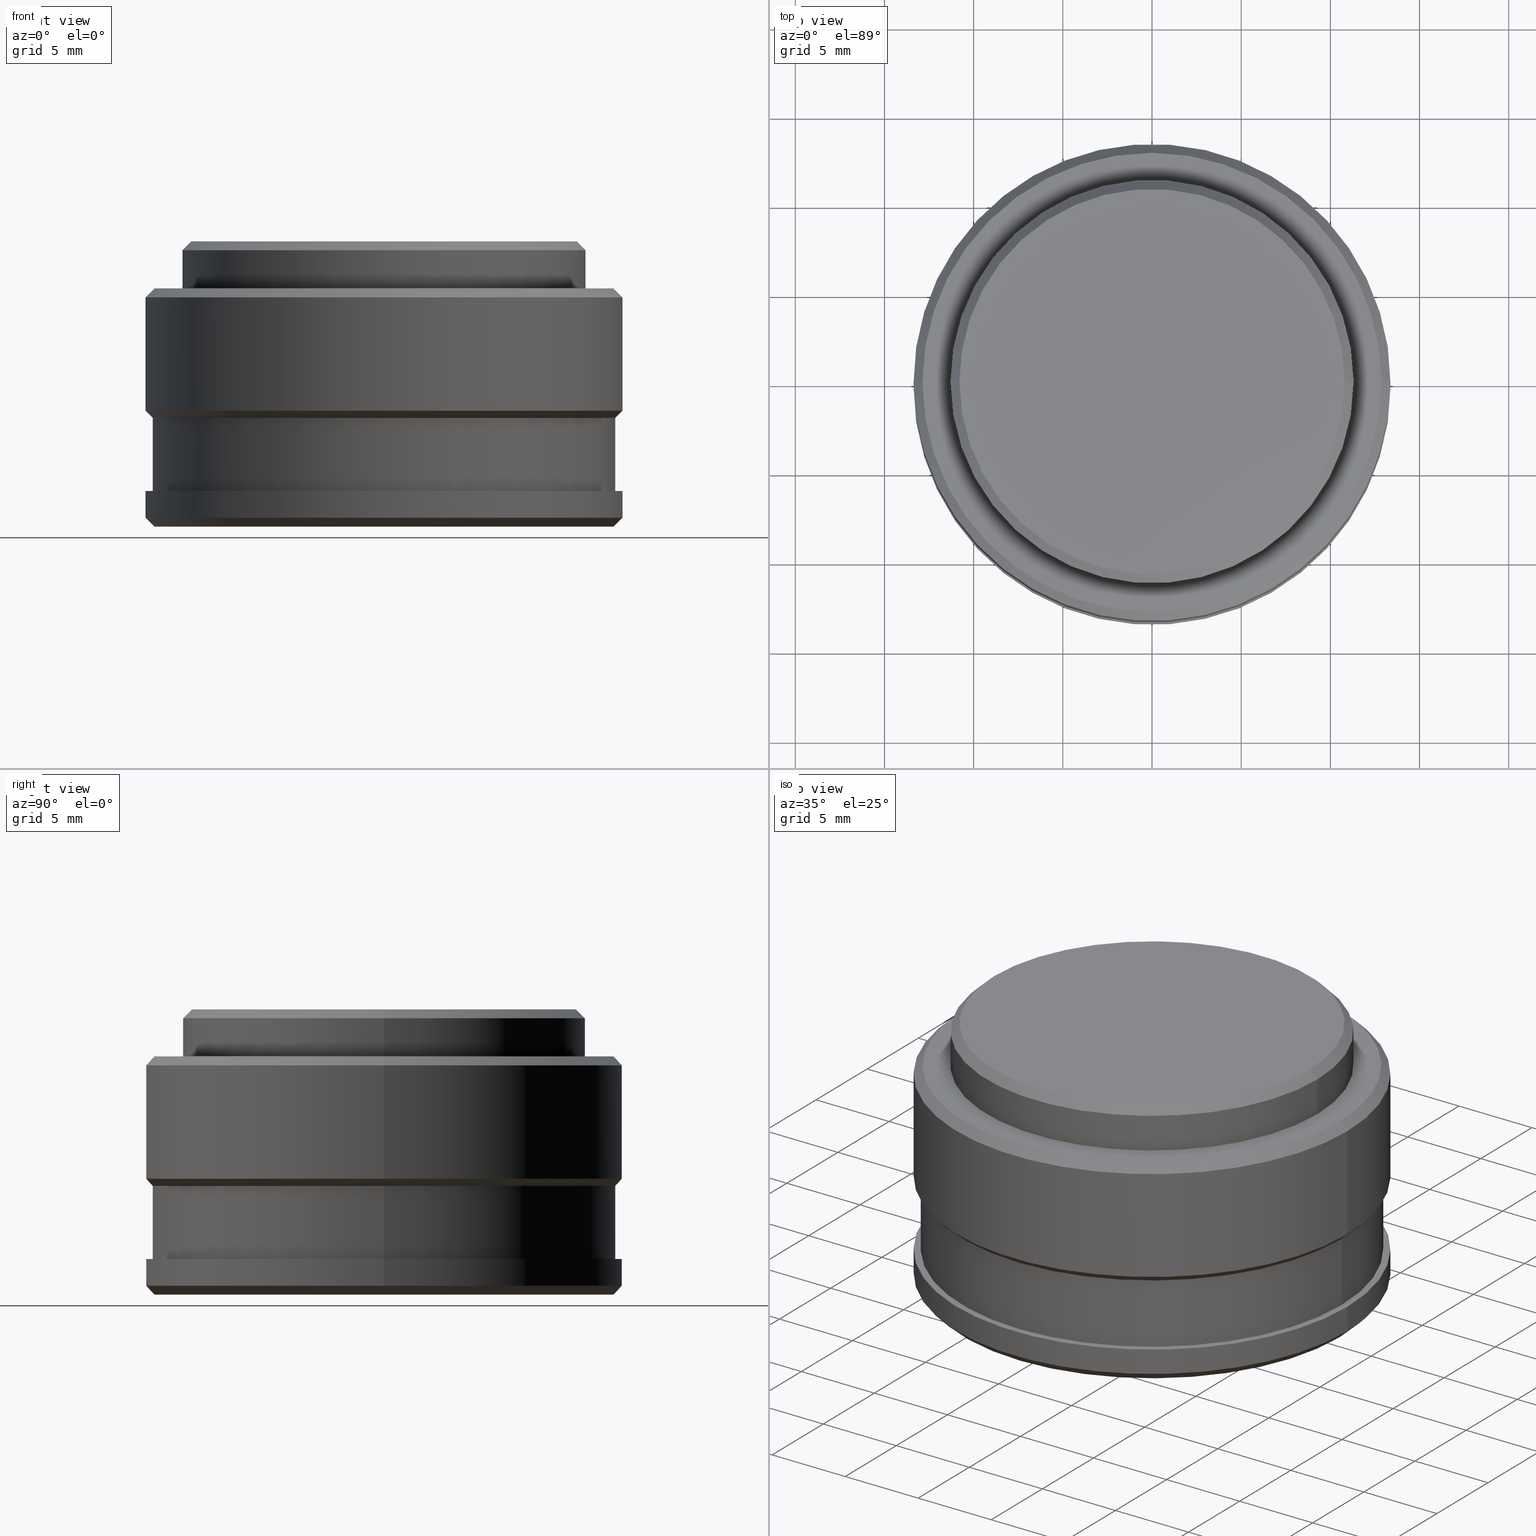
[diagram: canonical four-view strip — front | top / right | iso, engineering-drawing reading convention]
A machine part, canonical four-view strip (front | top / right | iso — engineering-drawing reading convention). The complete STEP part file that produces these views, byte-faithful:
ISO-10303-21;
HEADER;
FILE_DESCRIPTION (( 'STEP AP203' ),
    '1' );
FILE_NAME ('66175.STEP',
    '2019-03-04T07:07:10',
    ( 'User' ),
    ( 'china' ),
    'SwSTEP 2.0',
    'SolidWorks 2015',
    '' );
FILE_SCHEMA (( 'CONFIG_CONTROL_DESIGN' ));
ENDSEC;

DATA;
#1 = CARTESIAN_POINT ( 'NONE',  ( 10.79999999999999400, 1.322618543079140700E-015, 16.00000000000000000 ) ) ;
#2 = CYLINDRICAL_SURFACE ( 'NONE', #581, 12.97000000000000200 ) ;
#3 = ADVANCED_FACE ( 'NONE', ( #484 ), #7, .T. ) ;
#4 = LOCAL_TIME ( 15, 7, 10.00000000000000000, #123 ) ;
#5 = VERTEX_POINT ( 'NONE', #110 ) ;
#6 = ORIENTED_EDGE ( 'NONE', *, *, #90, .F. ) ;
#7 = CYLINDRICAL_SURFACE ( 'NONE', #476, 13.36999999999999900 ) ;
#8 = DIRECTION ( 'NONE',  ( -1.000000000000000000, 0.0000000000000000000, 0.0000000000000000000 ) ) ;
#9 = CC_DESIGN_PERSON_AND_ORGANIZATION_ASSIGNMENT ( #435, #531, ( #472 ) ) ;
#10 = EDGE_LOOP ( 'NONE', ( #299, #53, #291, #38 ) ) ;
#11 = DESIGN_CONTEXT ( 'detailed design', #570, 'design' ) ;
#12 = AXIS2_PLACEMENT_3D ( 'NONE', #413, #524, #370 ) ;
#13 = DIRECTION ( 'NONE',  ( 1.000000000000000000, 0.0000000000000000000, 0.0000000000000000000 ) ) ;
#14 = AXIS2_PLACEMENT_3D ( 'NONE', #325, #62, #418 ) ;
#15 = CONICAL_SURFACE ( 'NONE', #74, 10.79999999999999400, 0.7853981633974466100 ) ;
#16 = DIRECTION ( 'NONE',  ( -0.0000000000000000000, -0.0000000000000000000, 1.000000000000000000 ) ) ;
#17 = CALENDAR_DATE ( 2019, 4, 3 ) ;
#18 = ORIENTED_EDGE ( 'NONE', *, *, #419, .T. ) ;
#19 = CARTESIAN_POINT ( 'NONE',  ( 0.0000000000000000000, 0.0000000000000000000, 13.36000000000000100 ) ) ;
#20 = DIRECTION ( 'NONE',  ( -0.0000000000000000000, -0.0000000000000000000, -1.000000000000000000 ) ) ;
#21 = DIRECTION ( 'NONE',  ( 1.000000000000000000, 0.0000000000000000000, 0.0000000000000000000 ) ) ;
#22 = FACE_OUTER_BOUND ( 'NONE', #466, .T. ) ;
#23 = ORIENTED_EDGE ( 'NONE', *, *, #451, .T. ) ;
#24 = EDGE_CURVE ( 'NONE', #313, #87, #125, .T. ) ;
#25 = DIRECTION ( 'NONE',  ( -1.000000000000000000, 0.0000000000000000000, 0.0000000000000000000 ) ) ;
#26 = AXIS2_PLACEMENT_3D ( 'NONE', #554, #520, #25 ) ;
#27 = ORIENTED_EDGE ( 'NONE', *, *, #451, .F. ) ;
#28 = DIRECTION ( 'NONE',  ( 0.7071067811865439100, 0.0000000000000000000, 0.7071067811865512400 ) ) ;
#29 = CARTESIAN_POINT ( 'NONE',  ( 13.37000000000000100, 1.637352770460011400E-015, 2.000000000000000000 ) ) ;
#30 = CARTESIAN_POINT ( 'NONE',  ( 0.0000000000000000000, 0.0000000000000000000, 6.500000000000008900 ) ) ;
#31 = LINE ( 'NONE', #383, #248 ) ;
#32 = APPROVAL_STATUS ( 'not_yet_approved' ) ;
#33 =( NAMED_UNIT ( * ) PLANE_ANGLE_UNIT ( ) SI_UNIT ( $, .RADIAN. ) );
#34 = LINE ( 'NONE', #380, #138 ) ;
#35 = ORIENTED_EDGE ( 'NONE', *, *, #409, .F. ) ;
#36 = DIRECTION ( 'NONE',  ( -1.000000000000000000, 0.0000000000000000000, 0.0000000000000000000 ) ) ;
#37 = APPROVAL_STATUS ( 'not_yet_approved' ) ;
#38 = ORIENTED_EDGE ( 'NONE', *, *, #381, .T. ) ;
#39 = ORIENTED_EDGE ( 'NONE', *, *, #146, .F. ) ;
#40 = CARTESIAN_POINT ( 'NONE',  ( 0.0000000000000000000, 0.0000000000000000000, 13.36000000000000100 ) ) ;
#41 = LINE ( 'NONE', #1, #272 ) ;
#42 = SECURITY_CLASSIFICATION ( '', '', #254 ) ;
#43 = CYLINDRICAL_SURFACE ( 'NONE', #44, 11.30000000000000100 ) ;
#44 = AXIS2_PLACEMENT_3D ( 'NONE', #69, #425, #115 ) ;
#45 = CARTESIAN_POINT ( 'NONE',  ( 0.0000000000000000000, 0.0000000000000000000, 13.36000000000000100 ) ) ;
#46 = AXIS2_PLACEMENT_3D ( 'NONE', #58, #320, #13 ) ;
#47 = ADVANCED_FACE ( 'NONE', ( #240 ), #239, .F. ) ;
#48 = ADVANCED_FACE ( 'NONE', ( #359 ), #578, .T. ) ;
#49 = CONICAL_SURFACE ( 'NONE', #26, 10.79999999999999400, 0.7853981633974466100 ) ;
#50 = EDGE_LOOP ( 'NONE', ( #270, #420, #142, #448 ) ) ;
#51 = EDGE_CURVE ( 'NONE', #268, #87, #469, .T. ) ;
#52 = ORIENTED_EDGE ( 'NONE', *, *, #546, .T. ) ;
#53 = ORIENTED_EDGE ( 'NONE', *, *, #409, .T. ) ;
#54 = CIRCLE ( 'NONE', #258, 11.30000000000000100 ) ;
#55 = AXIS2_PLACEMENT_3D ( 'NONE', #199, #16, #277 ) ;
#56 = VECTOR ( 'NONE', #256, 999.9999999999998900 ) ;
#57 = DIRECTION ( 'NONE',  ( 0.0000000000000000000, 0.0000000000000000000, -1.000000000000000000 ) ) ;
#58 = CARTESIAN_POINT ( 'NONE',  ( 0.0000000000000000000, 0.0000000000000000000, 2.000000000000000000 ) ) ;
#59 = EDGE_CURVE ( 'NONE', #513, #245, #228, .T. ) ;
#60 = CARTESIAN_POINT ( 'NONE',  ( -12.86999999999999200, 1.606736600481327000E-015, 0.0000000000000000000 ) ) ;
#61 = DIRECTION ( 'NONE',  ( 0.0000000000000000000, 0.0000000000000000000, 1.000000000000000000 ) ) ;
#62 = DIRECTION ( 'NONE',  ( -0.0000000000000000000, -0.0000000000000000000, -1.000000000000000000 ) ) ;
#63 = VECTOR ( 'NONE', #562, 1000.000000000000000 ) ;
#64 = DIRECTION ( 'NONE',  ( 1.000000000000000000, 0.0000000000000000000, 0.0000000000000000000 ) ) ;
#65 = ORIENTED_EDGE ( 'NONE', *, *, #357, .T. ) ;
#66 = COORDINATED_UNIVERSAL_TIME_OFFSET ( 8, 0, .AHEAD. ) ;
#67 = ORIENTED_EDGE ( 'NONE', *, *, #323, .F. ) ;
#68 = LINE ( 'NONE', #274, #422 ) ;
#69 = CARTESIAN_POINT ( 'NONE',  ( 0.0000000000000000000, 0.0000000000000000000, 16.00000000000000000 ) ) ;
#70 = CIRCLE ( 'NONE', #12, 12.86999999999999200 ) ;
#71 = DIRECTION ( 'NONE',  ( 0.0000000000000000000, 0.0000000000000000000, 1.000000000000000000 ) ) ;
#72 = CC_DESIGN_PERSON_AND_ORGANIZATION_ASSIGNMENT ( #312, #580, ( #42 ) ) ;
#73 = PLANE ( 'NONE',  #112 ) ;
#74 = AXIS2_PLACEMENT_3D ( 'NONE', #576, #483, #164 ) ;
#75 = DATE_TIME_ROLE ( 'creation_date' ) ;
#76 = AXIS2_PLACEMENT_3D ( 'NONE', #555, #233, #463 ) ;
#77 = EDGE_LOOP ( 'NONE', ( #150, #497 ) ) ;
#78 = LOCAL_TIME ( 15, 7, 10.00000000000000000, #195 ) ;
#79 = VERTEX_POINT ( 'NONE', #281 ) ;
#80 = DIRECTION ( 'NONE',  ( 0.0000000000000000000, 0.0000000000000000000, -1.000000000000000000 ) ) ;
#81 = AXIS2_PLACEMENT_3D ( 'NONE', #30, #294, #21 ) ;
#82 = CIRCLE ( 'NONE', #162, 13.36999999999999900 ) ;
#83 = EDGE_CURVE ( 'NONE', #331, #504, #212, .T. ) ;
#84 = AXIS2_PLACEMENT_3D ( 'NONE', #333, #155, #565 ) ;
#85 = CARTESIAN_POINT ( 'NONE',  ( -12.87000000000000300, 0.0000000000000000000, 13.36000000000000100 ) ) ;
#86 = LINE ( 'NONE', #538, #203 ) ;
#87 = VERTEX_POINT ( 'NONE', #411 ) ;
#88 = DIRECTION ( 'NONE',  ( 0.0000000000000000000, 0.0000000000000000000, 1.000000000000000000 ) ) ;
#89 = ADVANCED_FACE ( 'NONE', ( #330 ), #314, .T. ) ;
#90 = EDGE_CURVE ( 'NONE', #347, #503, #438, .T. ) ;
#91 = ADVANCED_FACE ( 'NONE', ( #455 ), #547, .T. ) ;
#92 = APPROVAL_DATE_TIME ( #209, #505 ) ;
#93 = ORIENTED_EDGE ( 'NONE', *, *, #113, .T. ) ;
#94 = VECTOR ( 'NONE', #278, 1000.000000000000000 ) ;
#95 = ORGANIZATION ( 'δָ��', 'δָ��', '' ) ;
#96 = CC_DESIGN_DATE_AND_TIME_ASSIGNMENT ( #416, #305, ( #42 ) ) ;
#97 = EDGE_LOOP ( 'NONE', ( #558, #93, #583, #244 ) ) ;
#98 = EDGE_LOOP ( 'NONE', ( #280, #169, #139, #468 ) ) ;
#99 = DIRECTION ( 'NONE',  ( -1.000000000000000000, 0.0000000000000000000, 0.0000000000000000000 ) ) ;
#100 = DIRECTION ( 'NONE',  ( -0.0000000000000000000, -0.0000000000000000000, -1.000000000000000000 ) ) ;
#101 = AXIS2_PLACEMENT_3D ( 'NONE', #365, #57, #319 ) ;
#102 = CONICAL_SURFACE ( 'NONE', #490, 13.36999999999999900, 0.7853981633974431700 ) ;
#103 = CARTESIAN_POINT ( 'NONE',  ( -13.37000000000000100, 1.637352770460011400E-015, 0.5000000000000038900 ) ) ;
#104 = CARTESIAN_POINT ( 'NONE',  ( 0.0000000000000000000, 0.0000000000000000000, 13.36000000000000100 ) ) ;
#105 = FACE_OUTER_BOUND ( 'NONE', #257, .T. ) ;
#106 = APPROVAL_PERSON_ORGANIZATION ( #225, #505, #119 ) ;
#107 = DIRECTION ( 'NONE',  ( 1.000000000000000000, 0.0000000000000000000, -0.0000000000000000000 ) ) ;
#108 = ORIENTED_EDGE ( 'NONE', *, *, #579, .F. ) ;
#109 = CARTESIAN_POINT ( 'NONE',  ( 0.0000000000000000000, 0.0000000000000000000, 2.000000000000000000 ) ) ;
#110 = CARTESIAN_POINT ( 'NONE',  ( -13.36999999999999900, 0.0000000000000000000, 6.500000000000008900 ) ) ;
#111 = CIRCLE ( 'NONE', #101, 13.36999999999999900 ) ;
#112 = AXIS2_PLACEMENT_3D ( 'NONE', #296, #470, #118 ) ;
#113 = EDGE_CURVE ( 'NONE', #513, #331, #198, .T. ) ;
#114 = DIRECTION ( 'NONE',  ( -0.0000000000000000000, -0.0000000000000000000, 1.000000000000000000 ) ) ;
#115 = DIRECTION ( 'NONE',  ( -1.000000000000000000, 0.0000000000000000000, 0.0000000000000000000 ) ) ;
#116 = AXIS2_PLACEMENT_3D ( 'NONE', #371, #421, #152 ) ;
#117 = ORIENTED_EDGE ( 'NONE', *, *, #381, .F. ) ;
#118 = DIRECTION ( 'NONE',  ( 1.000000000000000000, 0.0000000000000000000, -0.0000000000000000000 ) ) ;
#119 = APPROVAL_ROLE ( '' ) ;
#120 = VECTOR ( 'NONE', #28, 1000.000000000000000 ) ;
#121 = EDGE_CURVE ( 'NONE', #331, #393, #111, .T. ) ;
#122 = DIRECTION ( 'NONE',  ( -0.0000000000000000000, -0.0000000000000000000, 1.000000000000000000 ) ) ;
#123 = COORDINATED_UNIVERSAL_TIME_OFFSET ( 8, 0, .AHEAD. ) ;
#124 = EDGE_LOOP ( 'NONE', ( #561, #181 ) ) ;
#125 = CIRCLE ( 'NONE', #445, 11.30000000000000100 ) ;
#126 = APPLICATION_PROTOCOL_DEFINITION ( 'international standard', 'config_control_design', 1994, #436 ) ;
#127 = CARTESIAN_POINT ( 'NONE',  ( 0.0000000000000000000, 0.0000000000000000000, 0.5000000000000038900 ) ) ;
#128 = EDGE_LOOP ( 'NONE', ( #117, #346 ) ) ;
#129 = APPROVAL ( #37, 'δָ��' ) ;
#130 = DIRECTION ( 'NONE',  ( 0.0000000000000000000, 0.0000000000000000000, -1.000000000000000000 ) ) ;
#131 = CIRCLE ( 'NONE', #392, 12.97000000000000200 ) ;
#132 = AXIS2_PLACEMENT_3D ( 'NONE', #367, #100, #461 ) ;
#133 = VERTEX_POINT ( 'NONE', #231 ) ;
#134 = LOCAL_TIME ( 15, 7, 10.00000000000000000, #249 ) ;
#135 = DIRECTION ( 'NONE',  ( -0.0000000000000000000, -0.0000000000000000000, 1.000000000000000000 ) ) ;
#136 = ORIENTED_EDGE ( 'NONE', *, *, #546, .F. ) ;
#137 = ADVANCED_FACE ( 'NONE', ( #304 ), #532, .T. ) ;
#138 = VECTOR ( 'NONE', #336, 1000.000000000000000 ) ;
#139 = ORIENTED_EDGE ( 'NONE', *, *, #486, .F. ) ;
#140 =( GEOMETRIC_REPRESENTATION_CONTEXT ( 3 ) GLOBAL_UNCERTAINTY_ASSIGNED_CONTEXT ( ( #364 ) ) GLOBAL_UNIT_ASSIGNED_CONTEXT ( ( #300, #33, #369 ) ) REPRESENTATION_CONTEXT ( 'NONE', 'WORKASPACE' ) );
#141 = EDGE_CURVE ( 'NONE', #393, #5, #68, .T. ) ;
#142 = ORIENTED_EDGE ( 'NONE', *, *, #260, .T. ) ;
#143 = AXIS2_PLACEMENT_3D ( 'NONE', #474, #521, #246 ) ;
#144 = DIRECTION ( 'NONE',  ( -0.0000000000000000000, -0.0000000000000000000, -1.000000000000000000 ) ) ;
#145 = CIRCLE ( 'NONE', #423, 11.30000000000000100 ) ;
#146 = EDGE_CURVE ( 'NONE', #347, #491, #185, .T. ) ;
#147 = DIRECTION ( 'NONE',  ( 1.000000000000000000, 0.0000000000000000000, 0.0000000000000000000 ) ) ;
#148 = DIRECTION ( 'NONE',  ( 0.0000000000000000000, 0.0000000000000000000, 1.000000000000000000 ) ) ;
#149 = FACE_OUTER_BOUND ( 'NONE', #124, .T. ) ;
#150 = ORIENTED_EDGE ( 'NONE', *, *, #387, .F. ) ;
#151 = ORIENTED_EDGE ( 'NONE', *, *, #121, .T. ) ;
#152 = DIRECTION ( 'NONE',  ( 1.000000000000000000, 0.0000000000000000000, 0.0000000000000000000 ) ) ;
#153 = ORIENTED_EDGE ( 'NONE', *, *, #419, .F. ) ;
#154 = ORIENTED_EDGE ( 'NONE', *, *, #297, .T. ) ;
#155 = DIRECTION ( 'NONE',  ( -0.0000000000000000000, -0.0000000000000000000, -1.000000000000000000 ) ) ;
#156 = CARTESIAN_POINT ( 'NONE',  ( 13.36999999999999900, 1.637352770460011200E-015, 12.86000000000000100 ) ) ;
#157 = FACE_OUTER_BOUND ( 'NONE', #501, .T. ) ;
#158 = CC_DESIGN_APPROVAL ( #129, ( #42 ) ) ;
#159 = LINE ( 'NONE', #525, #508 ) ;
#160 = CARTESIAN_POINT ( 'NONE',  ( 13.36999999999999900, 1.637352770460011200E-015, 6.500000000000008900 ) ) ;
#161 = PERSON_AND_ORGANIZATION_ROLE ( 'creator' ) ;
#162 = AXIS2_PLACEMENT_3D ( 'NONE', #273, #541, #223 ) ;
#163 = DIRECTION ( 'NONE',  ( 0.0000000000000000000, 0.0000000000000000000, 1.000000000000000000 ) ) ;
#164 = DIRECTION ( 'NONE',  ( -1.000000000000000000, 0.0000000000000000000, 0.0000000000000000000 ) ) ;
#165 = CIRCLE ( 'NONE', #143, 13.37000000000000100 ) ;
#166 = APPROVAL_DATE_TIME ( #283, #129 ) ;
#167 = DIRECTION ( 'NONE',  ( 1.000000000000000000, 0.0000000000000000000, 0.0000000000000000000 ) ) ;
#168 = ORIENTED_EDGE ( 'NONE', *, *, #318, .F. ) ;
#169 = ORIENTED_EDGE ( 'NONE', *, *, #456, .T. ) ;
#170 = EDGE_CURVE ( 'NONE', #393, #331, #82, .T. ) ;
#171 = CARTESIAN_POINT ( 'NONE',  ( 12.97000000000000200, 1.588366898494117400E-015, 2.000000000000000000 ) ) ;
#172 = FACE_OUTER_BOUND ( 'NONE', #97, .T. ) ;
#173 = AXIS2_PLACEMENT_3D ( 'NONE', #193, #572, #206 ) ;
#174 = DIRECTION ( 'NONE',  ( 1.000000000000000000, 0.0000000000000000000, -0.0000000000000000000 ) ) ;
#175 = FACE_OUTER_BOUND ( 'NONE', #499, .T. ) ;
#176 = CARTESIAN_POINT ( 'NONE',  ( 12.86999999999999200, 0.0000000000000000000, 0.0000000000000000000 ) ) ;
#177 = DIRECTION ( 'NONE',  ( -1.000000000000000000, 0.0000000000000000000, 0.0000000000000000000 ) ) ;
#178 = EDGE_CURVE ( 'NONE', #5, #504, #406, .T. ) ;
#179 = ADVANCED_FACE ( 'NONE', ( #172 ), #506, .T. ) ;
#180 = CYLINDRICAL_SURFACE ( 'NONE', #84, 13.37000000000000100 ) ;
#181 = ORIENTED_EDGE ( 'NONE', *, *, #90, .T. ) ;
#182 = ORIENTED_EDGE ( 'NONE', *, *, #235, .F. ) ;
#183 = APPROVAL_PERSON_ORGANIZATION ( #301, #129, #344 ) ;
#184 = VERTEX_POINT ( 'NONE', #309 ) ;
#185 = LINE ( 'NONE', #550, #288 ) ;
#186 = FACE_OUTER_BOUND ( 'NONE', #98, .T. ) ;
#187 = CC_DESIGN_SECURITY_CLASSIFICATION ( #42, ( #472 ) ) ;
#188 = DIRECTION ( 'NONE',  ( -0.0000000000000000000, -0.0000000000000000000, -1.000000000000000000 ) ) ;
#189 = AXIS2_PLACEMENT_3D ( 'NONE', #410, #188, #99 ) ;
#190 = CLOSED_SHELL ( 'NONE', ( #356, #179, #400, #266, #48, #137, #401, #447, #91, #500, #47, #89, #3, #264, #311, #222, #496, #542, #226, #453 ) ) ;
#191 = DIRECTION ( 'NONE',  ( -0.0000000000000000000, -0.0000000000000000000, -1.000000000000000000 ) ) ;
#192 = ORIENTED_EDGE ( 'NONE', *, *, #113, .F. ) ;
#193 = CARTESIAN_POINT ( 'NONE',  ( 0.0000000000000000000, 0.0000000000000000000, 0.5000000000000038900 ) ) ;
#194 = CARTESIAN_POINT ( 'NONE',  ( 0.0000000000000000000, 0.0000000000000000000, 13.36000000000000100 ) ) ;
#195 = COORDINATED_UNIVERSAL_TIME_OFFSET ( 8, 0, .AHEAD. ) ;
#196 = CARTESIAN_POINT ( 'NONE',  ( 10.79999999999999400, 1.353234713057825100E-015, 16.00000000000000000 ) ) ;
#197 = ORIENTED_EDGE ( 'NONE', *, *, #357, .F. ) ;
#198 = LINE ( 'NONE', #553, #564 ) ;
#199 = CARTESIAN_POINT ( 'NONE',  ( 0.0000000000000000000, 0.0000000000000000000, 6.500000000000008900 ) ) ;
#200 = EDGE_LOOP ( 'NONE', ( #585, #530, #23, #389 ) ) ;
#201 = EDGE_CURVE ( 'NONE', #460, #253, #41, .T. ) ;
#202 = DIRECTION ( 'NONE',  ( 1.000000000000000000, 0.0000000000000000000, 0.0000000000000000000 ) ) ;
#203 = VECTOR ( 'NONE', #261, 1000.000000000000000 ) ;
#204 = CARTESIAN_POINT ( 'NONE',  ( -12.97000000000000200, 0.0000000000000000000, 2.000000000000000000 ) ) ;
#205 = CARTESIAN_POINT ( 'NONE',  ( 11.30000000000000100, 1.383850883036509300E-015, 16.00000000000000000 ) ) ;
#206 = DIRECTION ( 'NONE',  ( 1.000000000000000000, 0.0000000000000000000, 0.0000000000000000000 ) ) ;
#207 = EDGE_CURVE ( 'NONE', #268, #253, #54, .T. ) ;
#208 = CARTESIAN_POINT ( 'NONE',  ( 0.0000000000000000000, 0.0000000000000000000, 6.500000000000008900 ) ) ;
#209 = DATE_AND_TIME ( #326, #450 ) ;
#210 = ORIENTED_EDGE ( 'NONE', *, *, #24, .T. ) ;
#211 = MECHANICAL_CONTEXT ( 'NONE', #436, 'mechanical' ) ;
#212 = LINE ( 'NONE', #279, #94 ) ;
#213 = EDGE_LOOP ( 'NONE', ( #39, #67, #242, #473 ) ) ;
#214 = PERSON_AND_ORGANIZATION_ROLE ( 'creator' ) ;
#215 = SHAPE_DEFINITION_REPRESENTATION ( #384, #429 ) ;
#216 = DIRECTION ( 'NONE',  ( 1.000000000000000000, 0.0000000000000000000, 0.0000000000000000000 ) ) ;
#217 = ORIENTED_EDGE ( 'NONE', *, *, #265, .T. ) ;
#218 = PRODUCT_RELATED_PRODUCT_CATEGORY ( 'detail', '', ( #509 ) ) ;
#219 = ORIENTED_EDGE ( 'NONE', *, *, #178, .T. ) ;
#220 = CARTESIAN_POINT ( 'NONE',  ( -12.87000000000000300, 0.0000000000000000000, 13.36000000000000100 ) ) ;
#221 = APPROVAL_PERSON_ORGANIZATION ( #441, #345, #337 ) ;
#222 = ADVANCED_FACE ( 'NONE', ( #519 ), #354, .T. ) ;
#223 = DIRECTION ( 'NONE',  ( 1.000000000000000000, 0.0000000000000000000, 0.0000000000000000000 ) ) ;
#224 = ORIENTED_EDGE ( 'NONE', *, *, #360, .T. ) ;
#225 = PERSON_AND_ORGANIZATION ( #551, #95 ) ;
#226 = ADVANCED_FACE ( 'NONE', ( #395 ), #426, .T. ) ;
#227 = ORIENTED_EDGE ( 'NONE', *, *, #482, .T. ) ;
#228 = CIRCLE ( 'NONE', #571, 12.87000000000000300 ) ;
#229 = AXIS2_PLACEMENT_3D ( 'NONE', #316, #498, #8 ) ;
#230 = ORIENTED_EDGE ( 'NONE', *, *, #515, .T. ) ;
#231 = CARTESIAN_POINT ( 'NONE',  ( -10.79999999999999400, 0.0000000000000000000, 16.00000000000000000 ) ) ;
#232 = FACE_OUTER_BOUND ( 'NONE', #516, .T. ) ;
#233 = DIRECTION ( 'NONE',  ( -0.0000000000000000000, -0.0000000000000000000, -1.000000000000000000 ) ) ;
#234 = PERSON_AND_ORGANIZATION ( #551, #95 ) ;
#235 = EDGE_CURVE ( 'NONE', #503, #556, #86, .T. ) ;
#236 = DIRECTION ( 'NONE',  ( -0.7071067811865439100, 8.659560562354888500E-017, 0.7071067811865512400 ) ) ;
#237 = VERTEX_POINT ( 'NONE', #176 ) ;
#238 = DIRECTION ( 'NONE',  ( 0.0000000000000000000, 0.0000000000000000000, 1.000000000000000000 ) ) ;
#239 = PLANE ( 'NONE',  #539 ) ;
#240 = FACE_OUTER_BOUND ( 'NONE', #329, .T. ) ;
#241 = CARTESIAN_POINT ( 'NONE',  ( -12.97000000000000200, 0.0000000000000000000, 6.000000000000000000 ) ) ;
#242 = ORIENTED_EDGE ( 'NONE', *, *, #235, .T. ) ;
#243 = CARTESIAN_POINT ( 'NONE',  ( 0.0000000000000000000, 0.0000000000000000000, 6.100000000000007600 ) ) ;
#244 = ORIENTED_EDGE ( 'NONE', *, *, #293, .F. ) ;
#245 = VERTEX_POINT ( 'NONE', #220 ) ;
#246 = DIRECTION ( 'NONE',  ( 1.000000000000000000, 0.0000000000000000000, 0.0000000000000000000 ) ) ;
#247 = DIRECTION ( 'NONE',  ( 1.000000000000000000, 0.0000000000000000000, 0.0000000000000000000 ) ) ;
#248 = VECTOR ( 'NONE', #236, 1000.000000000000000 ) ;
#249 = COORDINATED_UNIVERSAL_TIME_OFFSET ( 8, 0, .AHEAD. ) ;
#250 = DIRECTION ( 'NONE',  ( 1.000000000000000000, 0.0000000000000000000, 0.0000000000000000000 ) ) ;
#251 = DIRECTION ( 'NONE',  ( -0.0000000000000000000, -0.0000000000000000000, -1.000000000000000000 ) ) ;
#252 = ORIENTED_EDGE ( 'NONE', *, *, #146, .T. ) ;
#253 = VERTEX_POINT ( 'NONE', #493 ) ;
#254 = SECURITY_CLASSIFICATION_LEVEL ( 'unclassified' ) ;
#255 = AXIS2_PLACEMENT_3D ( 'NONE', #284, #238, #485 ) ;
#256 = DIRECTION ( 'NONE',  ( -0.7071067811865462400, 0.0000000000000000000, -0.7071067811865489100 ) ) ;
#257 = EDGE_LOOP ( 'NONE', ( #217, #437 ) ) ;
#258 = AXIS2_PLACEMENT_3D ( 'NONE', #446, #130, #398 ) ;
#259 = CARTESIAN_POINT ( 'NONE',  ( 0.0000000000000000000, 0.0000000000000000000, 2.000000000000000000 ) ) ;
#260 = EDGE_CURVE ( 'NONE', #271, #322, #549, .T. ) ;
#261 = DIRECTION ( 'NONE',  ( -0.0000000000000000000, -0.0000000000000000000, -1.000000000000000000 ) ) ;
#262 = VECTOR ( 'NONE', #251, 1000.000000000000000 ) ;
#263 = DIRECTION ( 'NONE',  ( 0.7071067811865463500, 8.659560562354919300E-017, -0.7071067811865487900 ) ) ;
#264 = ADVANCED_FACE ( 'NONE', ( #105, #307 ), #444, .T. ) ;
#265 = EDGE_CURVE ( 'NONE', #245, #513, #536, .T. ) ;
#266 = ADVANCED_FACE ( 'NONE', ( #186 ), #397, .T. ) ;
#267 = FACE_OUTER_BOUND ( 'NONE', #545, .T. ) ;
#268 = VERTEX_POINT ( 'NONE', #533 ) ;
#269 = ORIENTED_EDGE ( 'NONE', *, *, #456, .F. ) ;
#270 = ORIENTED_EDGE ( 'NONE', *, *, #379, .T. ) ;
#271 = VERTEX_POINT ( 'NONE', #171 ) ;
#272 = VECTOR ( 'NONE', #263, 1000.000000000000000 ) ;
#273 = CARTESIAN_POINT ( 'NONE',  ( 0.0000000000000000000, 0.0000000000000000000, 12.86000000000000100 ) ) ;
#274 = CARTESIAN_POINT ( 'NONE',  ( -13.36999999999999900, 0.0000000000000000000, 13.36000000000000100 ) ) ;
#275 = CIRCLE ( 'NONE', #569, 13.37000000000000100 ) ;
#276 = DIRECTION ( 'NONE',  ( 0.7071067811865462400, 8.659560562354918100E-017, -0.7071067811865489100 ) ) ;
#277 = DIRECTION ( 'NONE',  ( 1.000000000000000000, 0.0000000000000000000, 0.0000000000000000000 ) ) ;
#278 = DIRECTION ( 'NONE',  ( -0.0000000000000000000, -0.0000000000000000000, -1.000000000000000000 ) ) ;
#279 = CARTESIAN_POINT ( 'NONE',  ( 13.36999999999999900, 1.637352770460011200E-015, 13.36000000000000100 ) ) ;
#280 = ORIENTED_EDGE ( 'NONE', *, *, #482, .F. ) ;
#281 = CARTESIAN_POINT ( 'NONE',  ( 12.97000000000000200, 1.588366898494117400E-015, 6.100000000000007600 ) ) ;
#282 = VECTOR ( 'NONE', #417, 1000.000000000000000 ) ;
#283 = DATE_AND_TIME ( #403, #528 ) ;
#284 = CARTESIAN_POINT ( 'NONE',  ( 0.0000000000000000000, 0.0000000000000000000, 0.0000000000000000000 ) ) ;
#285 = ORIENTED_EDGE ( 'NONE', *, *, #141, .T. ) ;
#286 = ORIENTED_EDGE ( 'NONE', *, *, #201, .F. ) ;
#287 = CC_DESIGN_PERSON_AND_ORGANIZATION_ASSIGNMENT ( #566, #529, ( #509 ) ) ;
#288 = VECTOR ( 'NONE', #459, 1000.000000000000000 ) ;
#289 = CARTESIAN_POINT ( 'NONE',  ( 13.36999999999999900, 0.0000000000000000000, 6.500000000000008900 ) ) ;
#290 = CARTESIAN_POINT ( 'NONE',  ( 11.30000000000000100, 1.383850883036509300E-015, 13.36000000000000100 ) ) ;
#291 = ORIENTED_EDGE ( 'NONE', *, *, #349, .T. ) ;
#292 = FACE_OUTER_BOUND ( 'NONE', #310, .T. ) ;
#293 = EDGE_CURVE ( 'NONE', #245, #393, #408, .T. ) ;
#294 = DIRECTION ( 'NONE',  ( -0.0000000000000000000, -0.0000000000000000000, 1.000000000000000000 ) ) ;
#295 = APPLICATION_PROTOCOL_DEFINITION ( 'international standard', 'config_control_design', 1994, #570 ) ;
#296 = CARTESIAN_POINT ( 'NONE',  ( 0.0000000000000000000, 0.0000000000000000000, 2.000000000000000000 ) ) ;
#297 = EDGE_CURVE ( 'NONE', #460, #133, #522, .T. ) ;
#298 = CIRCLE ( 'NONE', #55, 13.36999999999999900 ) ;
#299 = ORIENTED_EDGE ( 'NONE', *, *, #350, .F. ) ;
#300 =( LENGTH_UNIT ( ) NAMED_UNIT ( * ) SI_UNIT ( .MILLI., .METRE. ) );
#301 = PERSON_AND_ORGANIZATION ( #551, #95 ) ;
#302 = CARTESIAN_POINT ( 'NONE',  ( 0.0000000000000000000, 0.0000000000000000000, 15.49999999999999100 ) ) ;
#303 = EDGE_LOOP ( 'NONE', ( #327, #362, #210, #334 ) ) ;
#304 = FACE_OUTER_BOUND ( 'NONE', #200, .T. ) ;
#305 = DATE_TIME_ROLE ( 'classification_date' ) ;
#306 = DIRECTION ( 'NONE',  ( 0.0000000000000000000, 0.0000000000000000000, 1.000000000000000000 ) ) ;
#307 = FACE_BOUND ( 'NONE', #77, .T. ) ;
#308 = ORIENTED_EDGE ( 'NONE', *, *, #486, .T. ) ;
#309 = CARTESIAN_POINT ( 'NONE',  ( -12.97000000000000200, 0.0000000000000000000, 6.100000000000007600 ) ) ;
#310 = EDGE_LOOP ( 'NONE', ( #108, #224, #517, #481 ) ) ;
#311 = ADVANCED_FACE ( 'NONE', ( #292 ), #43, .T. ) ;
#312 = PERSON_AND_ORGANIZATION ( #551, #95 ) ;
#313 = VERTEX_POINT ( 'NONE', #290 ) ;
#314 = CYLINDRICAL_SURFACE ( 'NONE', #76, 12.97000000000000200 ) ;
#315 = PRODUCT_DEFINITION ( 'δ֪', '', #472, #11 ) ;
#316 = CARTESIAN_POINT ( 'NONE',  ( 0.0000000000000000000, 0.0000000000000000000, 13.36000000000000100 ) ) ;
#317 = AXIS2_PLACEMENT_3D ( 'NONE', #45, #540, #177 ) ;
#318 = EDGE_CURVE ( 'NONE', #237, #488, #70, .T. ) ;
#319 = DIRECTION ( 'NONE',  ( 1.000000000000000000, 0.0000000000000000000, 0.0000000000000000000 ) ) ;
#320 = DIRECTION ( 'NONE',  ( 0.0000000000000000000, 0.0000000000000000000, 1.000000000000000000 ) ) ;
#321 = DIRECTION ( 'NONE',  ( 1.000000000000000000, 0.0000000000000000000, 0.0000000000000000000 ) ) ;
#322 = VERTEX_POINT ( 'NONE', #204 ) ;
#323 = EDGE_CURVE ( 'NONE', #503, #347, #275, .T. ) ;
#324 = CARTESIAN_POINT ( 'NONE',  ( 0.0000000000000000000, 0.0000000000000000000, 2.000000000000000000 ) ) ;
#325 = CARTESIAN_POINT ( 'NONE',  ( 0.0000000000000000000, 0.0000000000000000000, 16.00000000000000000 ) ) ;
#326 = CALENDAR_DATE ( 2019, 4, 3 ) ;
#327 = ORIENTED_EDGE ( 'NONE', *, *, #207, .T. ) ;
#328 = DIRECTION ( 'NONE',  ( -1.000000000000000000, 0.0000000000000000000, 0.0000000000000000000 ) ) ;
#329 = EDGE_LOOP ( 'NONE', ( #452, #227 ) ) ;
#330 = FACE_OUTER_BOUND ( 'NONE', #10, .T. ) ;
#331 = VERTEX_POINT ( 'NONE', #156 ) ;
#332 = AXIS2_PLACEMENT_3D ( 'NONE', #302, #489, #167 ) ;
#333 = CARTESIAN_POINT ( 'NONE',  ( 0.0000000000000000000, 0.0000000000000000000, 2.000000000000000000 ) ) ;
#334 = ORIENTED_EDGE ( 'NONE', *, *, #51, .F. ) ;
#335 = ORIENTED_EDGE ( 'NONE', *, *, #360, .F. ) ;
#336 = DIRECTION ( 'NONE',  ( 0.7071067811865512400, 0.0000000000000000000, 0.7071067811865439100 ) ) ;
#337 = APPROVAL_ROLE ( '' ) ;
#338 = CIRCLE ( 'NONE', #518, 13.37000000000000100 ) ;
#339 = DATE_AND_TIME ( #464, #4 ) ;
#340 = CARTESIAN_POINT ( 'NONE',  ( -13.36999999999999900, 0.0000000000000000000, 12.86000000000000100 ) ) ;
#341 = ORIENTED_EDGE ( 'NONE', *, *, #207, .F. ) ;
#342 = CARTESIAN_POINT ( 'NONE',  ( 0.0000000000000000000, 0.0000000000000000000, 6.000000000000000000 ) ) ;
#343 = VECTOR ( 'NONE', #191, 1000.000000000000000 ) ;
#344 = APPROVAL_ROLE ( '' ) ;
#345 = APPROVAL ( #32, 'δָ��' ) ;
#346 = ORIENTED_EDGE ( 'NONE', *, *, #260, .F. ) ;
#347 = VERTEX_POINT ( 'NONE', #29 ) ;
#348 = AXIS2_PLACEMENT_3D ( 'NONE', #495, #88, #351 ) ;
#349 = EDGE_CURVE ( 'NONE', #184, #322, #382, .T. ) ;
#350 = EDGE_CURVE ( 'NONE', #79, #271, #159, .T. ) ;
#351 = DIRECTION ( 'NONE',  ( 1.000000000000000000, 0.0000000000000000000, -0.0000000000000000000 ) ) ;
#352 = ORIENTED_EDGE ( 'NONE', *, *, #412, .F. ) ;
#353 = FACE_OUTER_BOUND ( 'NONE', #50, .T. ) ;
#354 = PLANE ( 'NONE',  #348 ) ;
#355 = APPROVAL_DATE_TIME ( #479, #345 ) ;
#356 = ADVANCED_FACE ( 'NONE', ( #175 ), #15, .T. ) ;
#357 = EDGE_CURVE ( 'NONE', #184, #5, #31, .T. ) ;
#358 = ORIENTED_EDGE ( 'NONE', *, *, #293, .T. ) ;
#359 = FACE_OUTER_BOUND ( 'NONE', #303, .T. ) ;
#360 = EDGE_CURVE ( 'NONE', #253, #268, #494, .T. ) ;
#361 = CONICAL_SURFACE ( 'NONE', #81, 13.36999999999999900, 0.7853981633974431700 ) ;
#362 = ORIENTED_EDGE ( 'NONE', *, *, #579, .T. ) ;
#363 = AXIS2_PLACEMENT_3D ( 'NONE', #391, #80, #557 ) ;
#364 = UNCERTAINTY_MEASURE_WITH_UNIT (LENGTH_MEASURE( 1.000000000000000100E-005 ), #300, 'distance_accuracy_value', 'NONE');
#365 = CARTESIAN_POINT ( 'NONE',  ( 0.0000000000000000000, 0.0000000000000000000, 12.86000000000000100 ) ) ;
#366 = CIRCLE ( 'NONE', #363, 12.97000000000000200 ) ;
#367 = CARTESIAN_POINT ( 'NONE',  ( 0.0000000000000000000, 0.0000000000000000000, 2.000000000000000000 ) ) ;
#368 = CARTESIAN_POINT ( 'NONE',  ( -13.37000000000000100, 0.0000000000000000000, 0.5000000000000038900 ) ) ;
#369 =( NAMED_UNIT ( * ) SI_UNIT ( $, .STERADIAN. ) SOLID_ANGLE_UNIT ( ) );
#370 = DIRECTION ( 'NONE',  ( 1.000000000000000000, 0.0000000000000000000, 0.0000000000000000000 ) ) ;
#371 = CARTESIAN_POINT ( 'NONE',  ( 0.0000000000000000000, 0.0000000000000000000, 0.0000000000000000000 ) ) ;
#372 = ORIENTED_EDGE ( 'NONE', *, *, #390, .T. ) ;
#373 = CC_DESIGN_APPROVAL ( #345, ( #315 ) ) ;
#374 = ORIENTED_EDGE ( 'NONE', *, *, #83, .F. ) ;
#375 = LINE ( 'NONE', #289, #120 ) ;
#376 = CARTESIAN_POINT ( 'NONE',  ( -10.79999999999999400, 0.0000000000000000000, 16.00000000000000000 ) ) ;
#377 = CARTESIAN_POINT ( 'NONE',  ( 0.0000000000000000000, 0.0000000000000000000, 16.00000000000000000 ) ) ;
#378 = AXIS2_PLACEMENT_3D ( 'NONE', #259, #535, #216 ) ;
#379 = EDGE_CURVE ( 'NONE', #184, #79, #366, .T. ) ;
#380 = CARTESIAN_POINT ( 'NONE',  ( 13.37000000000000100, 0.0000000000000000000, 0.5000000000000038900 ) ) ;
#381 = EDGE_CURVE ( 'NONE', #322, #271, #131, .T. ) ;
#382 = LINE ( 'NONE', #241, #262 ) ;
#383 = CARTESIAN_POINT ( 'NONE',  ( -13.36999999999999900, 1.637352770460011200E-015, 6.500000000000008900 ) ) ;
#384 = PRODUCT_DEFINITION_SHAPE ( 'NONE', 'NONE',  #315 ) ;
#385 = ORIENTED_EDGE ( 'NONE', *, *, #390, .F. ) ;
#386 = DIRECTION ( 'NONE',  ( -0.0000000000000000000, -0.0000000000000000000, -1.000000000000000000 ) ) ;
#387 = EDGE_CURVE ( 'NONE', #87, #313, #145, .T. ) ;
#388 = FACE_BOUND ( 'NONE', #128, .T. ) ;
#389 = ORIENTED_EDGE ( 'NONE', *, *, #141, .F. ) ;
#390 = EDGE_CURVE ( 'NONE', #133, #460, #477, .T. ) ;
#391 = CARTESIAN_POINT ( 'NONE',  ( 0.0000000000000000000, 0.0000000000000000000, 6.100000000000007600 ) ) ;
#392 = AXIS2_PLACEMENT_3D ( 'NONE', #324, #523, #247 ) ;
#393 = VERTEX_POINT ( 'NONE', #340 ) ;
#394 = ORIENTED_EDGE ( 'NONE', *, *, #201, .T. ) ;
#395 = FACE_OUTER_BOUND ( 'NONE', #454, .T. ) ;
#396 = DIRECTION ( 'NONE',  ( -0.0000000000000000000, -0.0000000000000000000, 1.000000000000000000 ) ) ;
#397 = CONICAL_SURFACE ( 'NONE', #507, 13.37000000000000100, 0.7853981633974533900 ) ;
#398 = DIRECTION ( 'NONE',  ( 1.000000000000000000, 0.0000000000000000000, 0.0000000000000000000 ) ) ;
#399 = DIRECTION ( 'NONE',  ( 1.000000000000000000, 0.0000000000000000000, 0.0000000000000000000 ) ) ;
#400 = ADVANCED_FACE ( 'NONE', ( #232 ), #102, .T. ) ;
#401 = ADVANCED_FACE ( 'NONE', ( #353 ), #2, .T. ) ;
#402 = LINE ( 'NONE', #376, #512 ) ;
#403 = CALENDAR_DATE ( 2019, 4, 3 ) ;
#404 = ORIENTED_EDGE ( 'NONE', *, *, #379, .F. ) ;
#405 = EDGE_LOOP ( 'NONE', ( #372, #154 ) ) ;
#406 = CIRCLE ( 'NONE', #510, 13.36999999999999900 ) ;
#407 = CC_DESIGN_PERSON_AND_ORGANIZATION_ASSIGNMENT ( #234, #161, ( #315 ) ) ;
#408 = LINE ( 'NONE', #85, #56 ) ;
#409 = EDGE_CURVE ( 'NONE', #79, #184, #462, .T. ) ;
#410 = CARTESIAN_POINT ( 'NONE',  ( 0.0000000000000000000, 0.0000000000000000000, 13.36000000000000100 ) ) ;
#411 = CARTESIAN_POINT ( 'NONE',  ( -11.30000000000000100, 0.0000000000000000000, 13.36000000000000100 ) ) ;
#412 = EDGE_CURVE ( 'NONE', #556, #491, #338, .T. ) ;
#413 = CARTESIAN_POINT ( 'NONE',  ( 0.0000000000000000000, 0.0000000000000000000, 0.0000000000000000000 ) ) ;
#414 = DIRECTION ( 'NONE',  ( 0.0000000000000000000, 0.0000000000000000000, 1.000000000000000000 ) ) ;
#415 = FACE_OUTER_BOUND ( 'NONE', #552, .T. ) ;
#416 = DATE_AND_TIME ( #544, #78 ) ;
#417 = DIRECTION ( 'NONE',  ( -0.7071067811865512400, 8.659560562354978500E-017, 0.7071067811865439100 ) ) ;
#418 = DIRECTION ( 'NONE',  ( -1.000000000000000000, 0.0000000000000000000, 0.0000000000000000000 ) ) ;
#419 = EDGE_CURVE ( 'NONE', #79, #504, #375, .T. ) ;
#420 = ORIENTED_EDGE ( 'NONE', *, *, #350, .T. ) ;
#421 = DIRECTION ( 'NONE',  ( -0.0000000000000000000, -0.0000000000000000000, -1.000000000000000000 ) ) ;
#422 = VECTOR ( 'NONE', #144, 1000.000000000000000 ) ;
#423 = AXIS2_PLACEMENT_3D ( 'NONE', #19, #574, #250 ) ;
#424 = DIRECTION ( 'NONE',  ( 1.000000000000000000, 0.0000000000000000000, 0.0000000000000000000 ) ) ;
#425 = DIRECTION ( 'NONE',  ( -0.0000000000000000000, -0.0000000000000000000, -1.000000000000000000 ) ) ;
#426 = CONICAL_SURFACE ( 'NONE', #317, 12.87000000000000300, 0.7853981633974465000 ) ;
#427 = DIRECTION ( 'NONE',  ( -0.7071067811865463500, 0.0000000000000000000, -0.7071067811865487900 ) ) ;
#428 = DIRECTION ( 'NONE',  ( 1.000000000000000000, 0.0000000000000000000, 0.0000000000000000000 ) ) ;
#429 = ADVANCED_BREP_SHAPE_REPRESENTATION ( '66175', ( #457, #255 ), #140 ) ;
#430 = CARTESIAN_POINT ( 'NONE',  ( 12.87000000000000300, 1.606736600481327600E-015, 13.36000000000000100 ) ) ;
#431 = ORIENTED_EDGE ( 'NONE', *, *, #265, .F. ) ;
#432 = APPROVAL_STATUS ( 'not_yet_approved' ) ;
#433 = DIRECTION ( 'NONE',  ( 1.000000000000000000, 0.0000000000000000000, 0.0000000000000000000 ) ) ;
#434 = EDGE_LOOP ( 'NONE', ( #374, #151, #285, #219 ) ) ;
#435 = PERSON_AND_ORGANIZATION ( #551, #95 ) ;
#436 = APPLICATION_CONTEXT ( 'configuration controlled 3d designs of mechanical parts and assemblies' ) ;
#437 = ORIENTED_EDGE ( 'NONE', *, *, #59, .T. ) ;
#438 = CIRCLE ( 'NONE', #46, 13.37000000000000100 ) ;
#439 = DIRECTION ( 'NONE',  ( 1.000000000000000000, 0.0000000000000000000, 0.0000000000000000000 ) ) ;
#440 = CC_DESIGN_DATE_AND_TIME_ASSIGNMENT ( #339, #75, ( #315 ) ) ;
#441 = PERSON_AND_ORGANIZATION ( #551, #95 ) ;
#442 = DIRECTION ( 'NONE',  ( 1.000000000000000000, 0.0000000000000000000, 0.0000000000000000000 ) ) ;
#443 = AXIS2_PLACEMENT_3D ( 'NONE', #40, #306, #582 ) ;
#444 = PLANE ( 'NONE',  #475 ) ;
#445 = AXIS2_PLACEMENT_3D ( 'NONE', #194, #467, #147 ) ;
#446 = CARTESIAN_POINT ( 'NONE',  ( 0.0000000000000000000, 0.0000000000000000000, 15.49999999999999100 ) ) ;
#447 = ADVANCED_FACE ( 'NONE', ( #157 ), #180, .T. ) ;
#448 = ORIENTED_EDGE ( 'NONE', *, *, #349, .F. ) ;
#449 = CARTESIAN_POINT ( 'NONE',  ( 0.0000000000000000000, 0.0000000000000000000, 6.500000000000008900 ) ) ;
#450 = LOCAL_TIME ( 15, 7, 10.00000000000000000, #575 ) ;
#451 = EDGE_CURVE ( 'NONE', #504, #5, #298, .T. ) ;
#452 = ORIENTED_EDGE ( 'NONE', *, *, #318, .T. ) ;
#453 = ADVANCED_FACE ( 'NONE', ( #415 ), #49, .T. ) ;
#454 = EDGE_LOOP ( 'NONE', ( #192, #431, #358, #573 ) ) ;
#455 = FACE_OUTER_BOUND ( 'NONE', #213, .T. ) ;
#456 = EDGE_CURVE ( 'NONE', #488, #556, #543, .T. ) ;
#457 = MANIFOLD_SOLID_BREP ( '����2', #190 ) ;
#458 = AXIS2_PLACEMENT_3D ( 'NONE', #480, #163, #433 ) ;
#459 = DIRECTION ( 'NONE',  ( -0.0000000000000000000, -0.0000000000000000000, -1.000000000000000000 ) ) ;
#460 = VERTEX_POINT ( 'NONE', #196 ) ;
#461 = DIRECTION ( 'NONE',  ( -1.000000000000000000, 0.0000000000000000000, 0.0000000000000000000 ) ) ;
#462 = CIRCLE ( 'NONE', #548, 12.97000000000000200 ) ;
#463 = DIRECTION ( 'NONE',  ( -1.000000000000000000, 0.0000000000000000000, 0.0000000000000000000 ) ) ;
#464 = CALENDAR_DATE ( 2019, 4, 3 ) ;
#465 = CARTESIAN_POINT ( 'NONE',  ( 13.37000000000000100, 1.637352770460011400E-015, 0.5000000000000038900 ) ) ;
#466 = EDGE_LOOP ( 'NONE', ( #197, #35, #18, #577 ) ) ;
#467 = DIRECTION ( 'NONE',  ( 0.0000000000000000000, 0.0000000000000000000, 1.000000000000000000 ) ) ;
#468 = ORIENTED_EDGE ( 'NONE', *, *, #515, .F. ) ;
#469 = LINE ( 'NONE', #511, #343 ) ;
#470 = DIRECTION ( 'NONE',  ( 0.0000000000000000000, 0.0000000000000000000, 1.000000000000000000 ) ) ;
#471 = CARTESIAN_POINT ( 'NONE',  ( 0.0000000000000000000, 0.0000000000000000000, 0.5000000000000038900 ) ) ;
#472 = PRODUCT_DEFINITION_FORMATION_WITH_SPECIFIED_SOURCE ( '�κ�', '', #509, .NOT_KNOWN. ) ;
#473 = ORIENTED_EDGE ( 'NONE', *, *, #412, .T. ) ;
#474 = CARTESIAN_POINT ( 'NONE',  ( 0.0000000000000000000, 0.0000000000000000000, 0.5000000000000038900 ) ) ;
#475 = AXIS2_PLACEMENT_3D ( 'NONE', #584, #492, #174 ) ;
#476 = AXIS2_PLACEMENT_3D ( 'NONE', #563, #20, #328 ) ;
#477 = CIRCLE ( 'NONE', #458, 10.79999999999999400 ) ;
#478 = CARTESIAN_POINT ( 'NONE',  ( -13.37000000000000100, 0.0000000000000000000, 2.000000000000000000 ) ) ;
#479 = DATE_AND_TIME ( #17, #134 ) ;
#480 = CARTESIAN_POINT ( 'NONE',  ( 0.0000000000000000000, 0.0000000000000000000, 16.00000000000000000 ) ) ;
#481 = ORIENTED_EDGE ( 'NONE', *, *, #387, .T. ) ;
#482 = EDGE_CURVE ( 'NONE', #488, #237, #526, .T. ) ;
#483 = DIRECTION ( 'NONE',  ( 0.0000000000000000000, 0.0000000000000000000, -1.000000000000000000 ) ) ;
#484 = FACE_OUTER_BOUND ( 'NONE', #434, .T. ) ;
#485 = DIRECTION ( 'NONE',  ( 1.000000000000000000, 0.0000000000000000000, 0.0000000000000000000 ) ) ;
#486 = EDGE_CURVE ( 'NONE', #491, #556, #165, .T. ) ;
#487 = LINE ( 'NONE', #205, #63 ) ;
#488 = VERTEX_POINT ( 'NONE', #60 ) ;
#489 = DIRECTION ( 'NONE',  ( 0.0000000000000000000, 0.0000000000000000000, -1.000000000000000000 ) ) ;
#490 = AXIS2_PLACEMENT_3D ( 'NONE', #208, #122, #439 ) ;
#491 = VERTEX_POINT ( 'NONE', #465 ) ;
#492 = DIRECTION ( 'NONE',  ( 0.0000000000000000000, 0.0000000000000000000, 1.000000000000000000 ) ) ;
#493 = CARTESIAN_POINT ( 'NONE',  ( 11.30000000000000100, 1.383850883036509300E-015, 15.49999999999999100 ) ) ;
#494 = CIRCLE ( 'NONE', #332, 11.30000000000000100 ) ;
#495 = CARTESIAN_POINT ( 'NONE',  ( 0.0000000000000000000, 0.0000000000000000000, 16.00000000000000000 ) ) ;
#496 = ADVANCED_FACE ( 'NONE', ( #267 ), #502, .T. ) ;
#497 = ORIENTED_EDGE ( 'NONE', *, *, #24, .F. ) ;
#498 = DIRECTION ( 'NONE',  ( 0.0000000000000000000, 0.0000000000000000000, -1.000000000000000000 ) ) ;
#499 = EDGE_LOOP ( 'NONE', ( #527, #394, #341, #136 ) ) ;
#500 = ADVANCED_FACE ( 'NONE', ( #388, #149 ), #73, .T. ) ;
#501 = EDGE_LOOP ( 'NONE', ( #6, #252, #308, #182 ) ) ;
#502 = CONICAL_SURFACE ( 'NONE', #173, 13.37000000000000100, 0.7853981633974533900 ) ;
#503 = VERTEX_POINT ( 'NONE', #478 ) ;
#504 = VERTEX_POINT ( 'NONE', #160 ) ;
#505 = APPROVAL ( #432, 'δָ��' ) ;
#506 = CONICAL_SURFACE ( 'NONE', #229, 12.87000000000000300, 0.7853981633974465000 ) ;
#507 = AXIS2_PLACEMENT_3D ( 'NONE', #127, #396, #442 ) ;
#508 = VECTOR ( 'NONE', #514, 1000.000000000000000 ) ;
#509 = PRODUCT ( '66175', '66175', '', ( #211 ) ) ;
#510 = AXIS2_PLACEMENT_3D ( 'NONE', #449, #135, #399 ) ;
#511 = CARTESIAN_POINT ( 'NONE',  ( -11.30000000000000100, 0.0000000000000000000, 16.00000000000000000 ) ) ;
#512 = VECTOR ( 'NONE', #427, 1000.000000000000000 ) ;
#513 = VERTEX_POINT ( 'NONE', #430 ) ;
#514 = DIRECTION ( 'NONE',  ( -0.0000000000000000000, -0.0000000000000000000, -1.000000000000000000 ) ) ;
#515 = EDGE_CURVE ( 'NONE', #237, #491, #34, .T. ) ;
#516 = EDGE_LOOP ( 'NONE', ( #404, #65, #27, #153 ) ) ;
#517 = ORIENTED_EDGE ( 'NONE', *, *, #51, .T. ) ;
#518 = AXIS2_PLACEMENT_3D ( 'NONE', #471, #114, #424 ) ;
#519 = FACE_OUTER_BOUND ( 'NONE', #405, .T. ) ;
#520 = DIRECTION ( 'NONE',  ( 0.0000000000000000000, 0.0000000000000000000, -1.000000000000000000 ) ) ;
#521 = DIRECTION ( 'NONE',  ( -0.0000000000000000000, -0.0000000000000000000, 1.000000000000000000 ) ) ;
#522 = CIRCLE ( 'NONE', #537, 10.79999999999999400 ) ;
#523 = DIRECTION ( 'NONE',  ( 0.0000000000000000000, 0.0000000000000000000, 1.000000000000000000 ) ) ;
#524 = DIRECTION ( 'NONE',  ( -0.0000000000000000000, -0.0000000000000000000, -1.000000000000000000 ) ) ;
#525 = CARTESIAN_POINT ( 'NONE',  ( 12.97000000000000200, 1.588366898494117400E-015, 6.000000000000000000 ) ) ;
#526 = CIRCLE ( 'NONE', #116, 12.86999999999999200 ) ;
#527 = ORIENTED_EDGE ( 'NONE', *, *, #297, .F. ) ;
#528 = LOCAL_TIME ( 15, 7, 10.00000000000000000, #66 ) ;
#529 = PERSON_AND_ORGANIZATION_ROLE ( 'design_owner' ) ;
#530 = ORIENTED_EDGE ( 'NONE', *, *, #83, .T. ) ;
#531 = PERSON_AND_ORGANIZATION_ROLE ( 'design_supplier' ) ;
#532 = CYLINDRICAL_SURFACE ( 'NONE', #189, 13.36999999999999900 ) ;
#533 = CARTESIAN_POINT ( 'NONE',  ( -11.30000000000000100, 0.0000000000000000000, 15.49999999999999100 ) ) ;
#534 = CC_DESIGN_APPROVAL ( #505, ( #472 ) ) ;
#535 = DIRECTION ( 'NONE',  ( 0.0000000000000000000, 0.0000000000000000000, 1.000000000000000000 ) ) ;
#536 = CIRCLE ( 'NONE', #443, 12.87000000000000300 ) ;
#537 = AXIS2_PLACEMENT_3D ( 'NONE', #377, #71, #428 ) ;
#538 = CARTESIAN_POINT ( 'NONE',  ( -13.37000000000000100, 0.0000000000000000000, 2.000000000000000000 ) ) ;
#539 = AXIS2_PLACEMENT_3D ( 'NONE', #560, #414, #107 ) ;
#540 = DIRECTION ( 'NONE',  ( 0.0000000000000000000, 0.0000000000000000000, -1.000000000000000000 ) ) ;
#541 = DIRECTION ( 'NONE',  ( 0.0000000000000000000, 0.0000000000000000000, -1.000000000000000000 ) ) ;
#542 = ADVANCED_FACE ( 'NONE', ( #22 ), #361, .T. ) ;
#543 = LINE ( 'NONE', #103, #282 ) ;
#544 = CALENDAR_DATE ( 2019, 4, 3 ) ;
#545 = EDGE_LOOP ( 'NONE', ( #269, #168, #230, #352 ) ) ;
#546 = EDGE_CURVE ( 'NONE', #133, #268, #402, .T. ) ;
#547 = CYLINDRICAL_SURFACE ( 'NONE', #132, 13.37000000000000100 ) ;
#548 = AXIS2_PLACEMENT_3D ( 'NONE', #243, #567, #202 ) ;
#549 = CIRCLE ( 'NONE', #378, 12.97000000000000200 ) ;
#550 = CARTESIAN_POINT ( 'NONE',  ( 13.37000000000000100, 1.637352770460011400E-015, 2.000000000000000000 ) ) ;
#551 = PERSON ( 'δָ��', 'δָ��', 'δָ��', ('δָ��'), ('δָ��'), ('δָ��') ) ;
#552 = EDGE_LOOP ( 'NONE', ( #286, #385, #52, #335 ) ) ;
#553 = CARTESIAN_POINT ( 'NONE',  ( 12.87000000000000300, 1.576120430502643800E-015, 13.36000000000000100 ) ) ;
#554 = CARTESIAN_POINT ( 'NONE',  ( 0.0000000000000000000, 0.0000000000000000000, 16.00000000000000000 ) ) ;
#555 = CARTESIAN_POINT ( 'NONE',  ( 0.0000000000000000000, 0.0000000000000000000, 6.000000000000000000 ) ) ;
#556 = VERTEX_POINT ( 'NONE', #368 ) ;
#557 = DIRECTION ( 'NONE',  ( 1.000000000000000000, 0.0000000000000000000, 0.0000000000000000000 ) ) ;
#558 = ORIENTED_EDGE ( 'NONE', *, *, #59, .F. ) ;
#559 = PERSON_AND_ORGANIZATION ( #551, #95 ) ;
#560 = CARTESIAN_POINT ( 'NONE',  ( 0.0000000000000000000, 0.0000000000000000000, 0.0000000000000000000 ) ) ;
#561 = ORIENTED_EDGE ( 'NONE', *, *, #323, .T. ) ;
#562 = DIRECTION ( 'NONE',  ( -0.0000000000000000000, -0.0000000000000000000, -1.000000000000000000 ) ) ;
#563 = CARTESIAN_POINT ( 'NONE',  ( 0.0000000000000000000, 0.0000000000000000000, 13.36000000000000100 ) ) ;
#564 = VECTOR ( 'NONE', #276, 999.9999999999998900 ) ;
#565 = DIRECTION ( 'NONE',  ( -1.000000000000000000, 0.0000000000000000000, 0.0000000000000000000 ) ) ;
#566 = PERSON_AND_ORGANIZATION ( #551, #95 ) ;
#567 = DIRECTION ( 'NONE',  ( 0.0000000000000000000, 0.0000000000000000000, -1.000000000000000000 ) ) ;
#568 = CC_DESIGN_PERSON_AND_ORGANIZATION_ASSIGNMENT ( #559, #214, ( #472 ) ) ;
#569 = AXIS2_PLACEMENT_3D ( 'NONE', #109, #148, #64 ) ;
#570 = APPLICATION_CONTEXT ( 'configuration controlled 3d designs of mechanical parts and assemblies' ) ;
#571 = AXIS2_PLACEMENT_3D ( 'NONE', #104, #61, #321 ) ;
#572 = DIRECTION ( 'NONE',  ( -0.0000000000000000000, -0.0000000000000000000, 1.000000000000000000 ) ) ;
#573 = ORIENTED_EDGE ( 'NONE', *, *, #121, .F. ) ;
#574 = DIRECTION ( 'NONE',  ( 0.0000000000000000000, 0.0000000000000000000, 1.000000000000000000 ) ) ;
#575 = COORDINATED_UNIVERSAL_TIME_OFFSET ( 8, 0, .AHEAD. ) ;
#576 = CARTESIAN_POINT ( 'NONE',  ( 0.0000000000000000000, 0.0000000000000000000, 16.00000000000000000 ) ) ;
#577 = ORIENTED_EDGE ( 'NONE', *, *, #178, .F. ) ;
#578 = CYLINDRICAL_SURFACE ( 'NONE', #14, 11.30000000000000100 ) ;
#579 = EDGE_CURVE ( 'NONE', #253, #313, #487, .T. ) ;
#580 = PERSON_AND_ORGANIZATION_ROLE ( 'classification_officer' ) ;
#581 = AXIS2_PLACEMENT_3D ( 'NONE', #342, #386, #36 ) ;
#582 = DIRECTION ( 'NONE',  ( 1.000000000000000000, 0.0000000000000000000, 0.0000000000000000000 ) ) ;
#583 = ORIENTED_EDGE ( 'NONE', *, *, #170, .F. ) ;
#584 = CARTESIAN_POINT ( 'NONE',  ( 0.0000000000000000000, 0.0000000000000000000, 13.36000000000000100 ) ) ;
#585 = ORIENTED_EDGE ( 'NONE', *, *, #170, .T. ) ;
ENDSEC;
END-ISO-10303-21;
